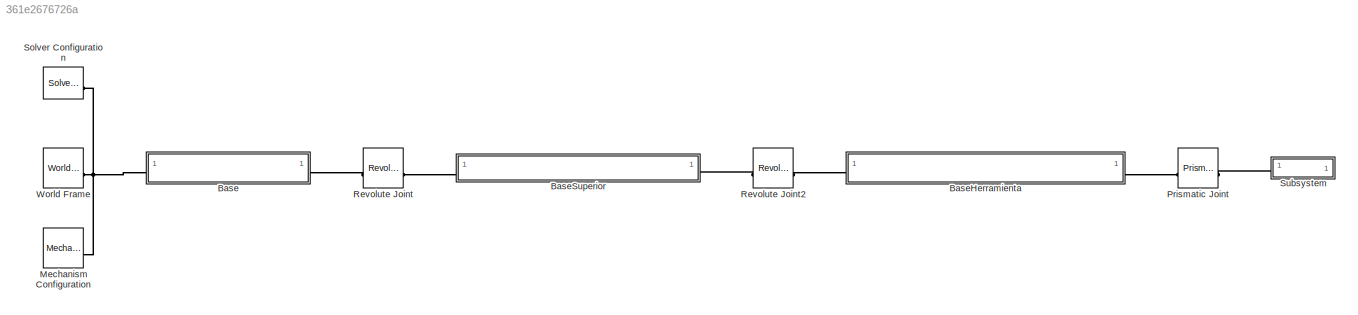
MODEL slx_361e2676726a
KIND model
CONFIG AbsTol = 1e-3
CONFIG EnableMultiTasking = on
CONFIG FixedStep = auto
CONFIG MaxStep = auto
CONFIG MinStep = auto
CONFIG RelTol = 1e-3
CONFIG SampleTimeConstraint = Unconstrained
CONFIG SolverName = VariableStepAuto
CONFIG StartTime = 0.0
CONFIG StopTime = 10.0
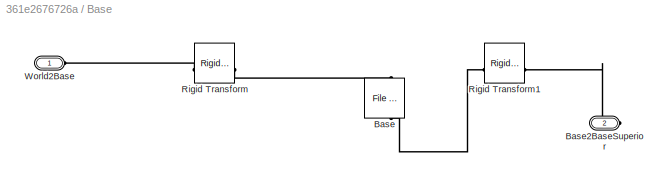
BLOCK [SubSystem] Base
BLOCK [Reference] Base/Base  REF=sm_lib/Body Elements/File Solid
  NameLocation = left
  SourceBlock = sm_lib/Body Elements/File Solid
  SourceType = File Solid
BLOCK [PMIOPort] Base/Base2BaseSuperior
  Port = 2
  Side = Right
BLOCK [Reference] Base/Rigid Transform  REF=sm_lib/Frames and
Transforms/Rigid
Transform
  SourceBlock = sm_lib/Frames and\nTransforms/Rigid\nTransform
  SourceType = Rigid\nTransform
BLOCK [Reference] Base/Rigid Transform1  REF=sm_lib/Frames and
Transforms/Rigid
Transform
  SourceBlock = sm_lib/Frames and\nTransforms/Rigid\nTransform
  SourceType = Rigid\nTransform
BLOCK [PMIOPort] Base/World2Base
  Side = Left
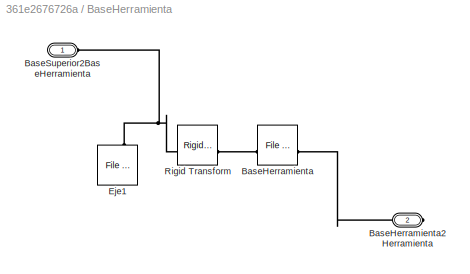
BLOCK [SubSystem] BaseHerramienta
BLOCK [Reference] BaseHerramienta/BaseHerramienta  REF=sm_lib/Body Elements/File Solid
  SourceBlock = sm_lib/Body Elements/File Solid
  SourceType = File Solid
BLOCK [PMIOPort] BaseHerramienta/BaseHerramienta2Herramienta
  Port = 2
  Side = Right
BLOCK [PMIOPort] BaseHerramienta/BaseSuperior2BaseHerramienta
  Side = Left
BLOCK [Reference] BaseHerramienta/Eje1  REF=sm_lib/Body Elements/File Solid
  NameLocation = left
  SourceBlock = sm_lib/Body Elements/File Solid
  SourceType = File Solid
BLOCK [Reference] BaseHerramienta/Rigid Transform  REF=sm_lib/Frames and
Transforms/Rigid
Transform
  SourceBlock = sm_lib/Frames and\nTransforms/Rigid\nTransform
  SourceType = Rigid\nTransform
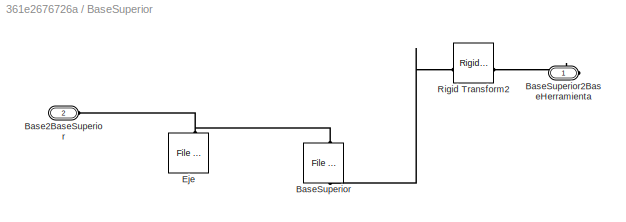
BLOCK [SubSystem] BaseSuperior
BLOCK [PMIOPort] BaseSuperior/Base2BaseSuperior
  Port = 2
  Side = Left
BLOCK [Reference] BaseSuperior/BaseSuperior  REF=sm_lib/Body Elements/File Solid
  NameLocation = left
  SourceBlock = sm_lib/Body Elements/File Solid
  SourceType = File Solid
BLOCK [PMIOPort] BaseSuperior/BaseSuperior2BaseHerramienta
  Side = Right
BLOCK [Reference] BaseSuperior/Eje  REF=sm_lib/Body Elements/File Solid
  NameLocation = left
  SourceBlock = sm_lib/Body Elements/File Solid
  SourceType = File Solid
BLOCK [Reference] BaseSuperior/Rigid Transform2  REF=sm_lib/Frames and
Transforms/Rigid
Transform
  SourceBlock = sm_lib/Frames and\nTransforms/Rigid\nTransform
  SourceType = Rigid\nTransform
BLOCK [Reference] Mechanism Configuration  REF=sm_lib/Utilities/Mechanism
Configuration
  SourceBlock = sm_lib/Utilities/Mechanism\nConfiguration
  SourceType = Mechanism\nConfiguration
BLOCK [Reference] Prismatic Joint  REF=sm_lib/Joints/Prismatic
Joint
  SourceBlock = sm_lib/Joints/Prismatic\nJoint
  SourceType = Prismatic\nJoint
BLOCK [Reference] Revolute Joint  REF=sm_lib/Joints/Revolute Joint
  SourceBlock = sm_lib/Joints/Revolute Joint
  SourceType = Revolute Joint
BLOCK [Reference] Revolute Joint2  REF=sm_lib/Joints/Revolute Joint
  SourceBlock = sm_lib/Joints/Revolute Joint
  SourceType = Revolute Joint
BLOCK [Reference] Solver Configuration  REF=nesl_utility/Solver
Configuration
  SourceBlock = nesl_utility/Solver\nConfiguration
  SourceType = Solver\nConfiguration
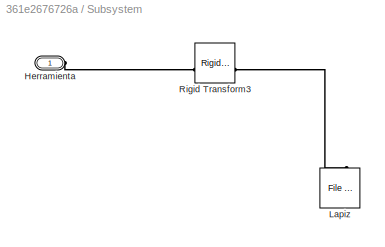
BLOCK [SubSystem] Subsystem
BLOCK [PMIOPort] Subsystem/Herramienta
  Side = Left
BLOCK [Reference] Subsystem/Lapiz  REF=sm_lib/Body Elements/File Solid
  NameLocation = left
  SourceBlock = sm_lib/Body Elements/File Solid
  SourceType = File Solid
BLOCK [Reference] Subsystem/Rigid Transform3  REF=sm_lib/Frames and
Transforms/Rigid
Transform
  SourceBlock = sm_lib/Frames and\nTransforms/Rigid\nTransform
  SourceType = Rigid\nTransform
BLOCK [Reference] World Frame  REF=sm_lib/Frames and
Transforms/World Frame
  SourceBlock = sm_lib/Frames and\nTransforms/World Frame
  SourceType = World Frame
PLINE Base/Base2BaseSuperior:RConn1 -- Base/Rigid Transform1:RConn1
PLINE Base/Base:LConn1 -- Base/Rigid Transform:RConn1
PLINE Base/Base:RConn1 -- Base/Rigid Transform1:LConn1
PLINE Base/Rigid Transform:LConn1 -- Base/World2Base:RConn1
PNET net1: Base:LConn1 -- Mechanism Configuration:RConn1 -- Solver Configuration:RConn1 -- World Frame:RConn1
PLINE Base:RConn1 -- Revolute Joint:LConn1
PLINE BaseHerramienta/BaseHerramienta2Herramienta:RConn1 -- BaseHerramienta/BaseHerramienta:RConn1
PLINE BaseHerramienta/BaseHerramienta:LConn1 -- BaseHerramienta/Rigid Transform:RConn1
PNET net2: BaseHerramienta/BaseSuperior2BaseHerramienta:RConn1 -- BaseHerramienta/Eje1:LConn1 -- BaseHerramienta/Rigid Transform:LConn1
PLINE BaseHerramienta:LConn1 -- Revolute Joint2:RConn1
PLINE BaseHerramienta:RConn1 -- Prismatic Joint:LConn1
PNET net3: BaseSuperior/Base2BaseSuperior:RConn1 -- BaseSuperior/BaseSuperior:LConn1 -- BaseSuperior/Eje:LConn1
PLINE BaseSuperior/BaseSuperior2BaseHerramienta:RConn1 -- BaseSuperior/Rigid Transform2:RConn1
PLINE BaseSuperior/BaseSuperior:RConn1 -- BaseSuperior/Rigid Transform2:LConn1
PLINE BaseSuperior:LConn1 -- Revolute Joint:RConn1
PLINE BaseSuperior:RConn1 -- Revolute Joint2:LConn1
PLINE Prismatic Joint:RConn1 -- Subsystem:LConn1
PLINE Subsystem/Herramienta:RConn1 -- Subsystem/Rigid Transform3:LConn1
PLINE Subsystem/Lapiz:LConn1 -- Subsystem/Rigid Transform3:RConn1
note: PNET lines group multi-terminal physical nets as a canonical sorted terminal list (undirected conserving connections); 2-terminal nets keep the pairwise PLINE form
